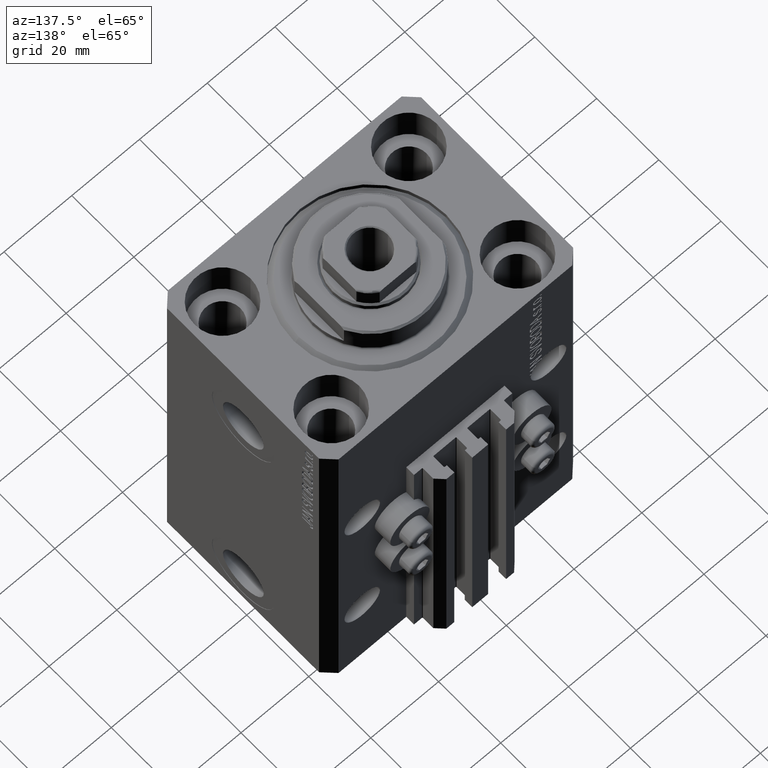
[diagram: clean part render]
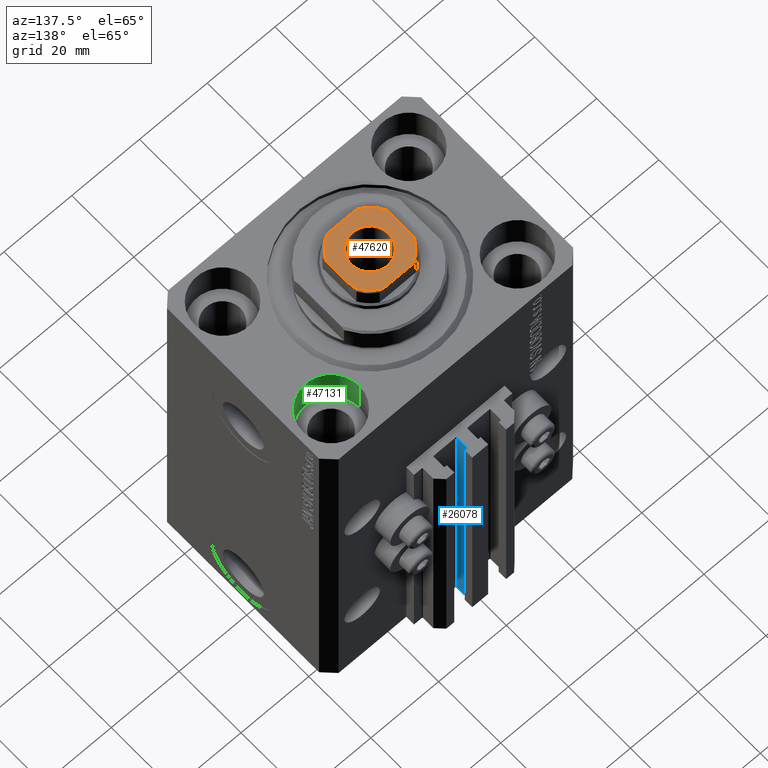
[diagram: same view with three faces highlighted in distinct colors, each labeled with its STEP entity id]
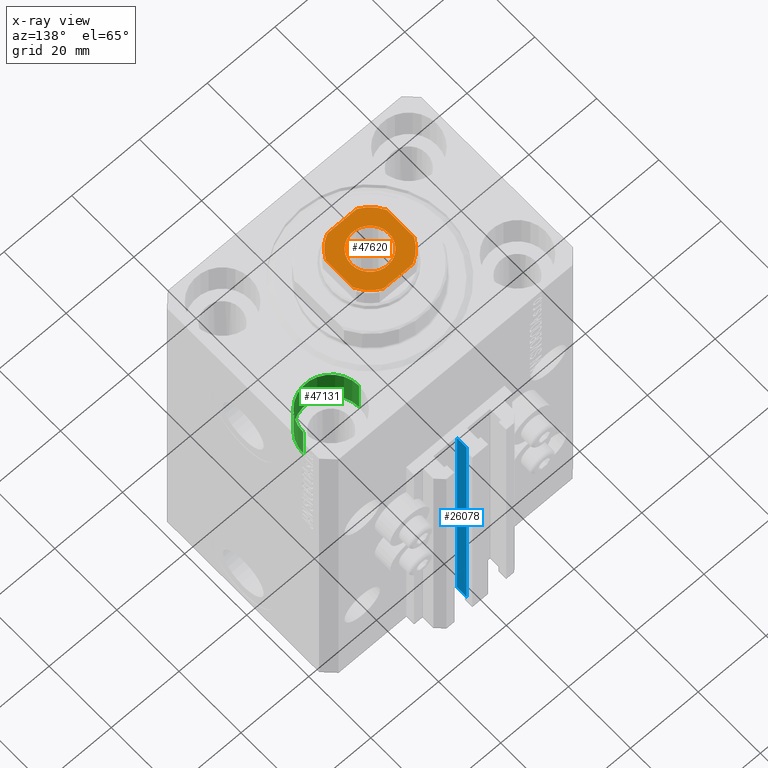
[diagram: x-ray of the same camera — body ghosted, the three highlighted faces saturated]
A machine part, auxiliary view with three faces highlighted in distinct colors.
The next image is the same camera in x-ray (body ghosted, the three faces saturated) — at least one of them is partly hidden behind the body in this view.
Their STEP definitions:

[orange] entity #47620 — the highlighted planar face has unit normal (0, 0, 1).
#175 = VERTEX_POINT ( 'NONE', #40289 ) ;
#805 = CIRCLE ( 'NONE', #36385, 10.00000000000000000 ) ;
#1974 = EDGE_CURVE ( 'NONE', #20349, #175, #35074, .T. ) ;
#2368 = DIRECTION ( 'NONE',  ( 1.000000000000000000, 0.000000000000000000, 0.000000000000000000 ) ) ;
#4389 = DIRECTION ( 'NONE',  ( 9.637352644315595243E-17, -1.000000000000000000, 0.000000000000000000 ) ) ;
#4823 = EDGE_CURVE ( 'NONE', #27548, #38498, #20474, .T. ) ;
#4970 = EDGE_CURVE ( 'NONE', #175, #9962, #40990, .T. ) ;
#5602 = ORIENTED_EDGE ( 'NONE', *, *, #16789, .T. ) ;
#5926 = VECTOR ( 'NONE', #46401, 1000.000000000000000 ) ;
#6090 = ORIENTED_EDGE ( 'NONE', *, *, #24774, .T. ) ;
#6371 = CARTESIAN_POINT ( 'NONE',  ( 4.358898943540671311, -9.000000000000001776, 115.1000000000000085 ) ) ;
#8574 = EDGE_CURVE ( 'NONE', #9962, #27548, #37460, .T. ) ;
#8783 = DIRECTION ( 'NONE',  ( -0.000000000000000000, 0.000000000000000000, 1.000000000000000000 ) ) ;
#9962 = VERTEX_POINT ( 'NONE', #22454 ) ;
#10076 = DIRECTION ( 'NONE',  ( -0.000000000000000000, 0.000000000000000000, 1.000000000000000000 ) ) ;
#10531 = AXIS2_PLACEMENT_3D ( 'NONE', #17112, #10076, #32369 ) ;
#11165 = CARTESIAN_POINT ( 'NONE',  ( 9.000000000000001776, -4.358898943540675752, 115.1000000000000085 ) ) ;
#11641 = EDGE_LOOP ( 'NONE', ( #39034, #31295 ) ) ;
#11667 = ORIENTED_EDGE ( 'NONE', *, *, #39511, .T. ) ;
#11941 = EDGE_LOOP ( 'NONE', ( #35199, #44361, #36727, #6090, #11667, #13861, #5602, #28108 ) ) ;
#12011 = DIRECTION ( 'NONE',  ( 1.000000000000000000, 0.000000000000000000, 0.000000000000000000 ) ) ;
#12061 = CIRCLE ( 'NONE', #43798, 5.549999999999985612 ) ;
#12099 = CIRCLE ( 'NONE', #36009, 5.549999999999985612 ) ;
#13861 = ORIENTED_EDGE ( 'NONE', *, *, #41456, .T. ) ;
#14510 = DIRECTION ( 'NONE',  ( -1.000000000000000000, -0.000000000000000000, -0.000000000000000000 ) ) ;
#15023 = VERTEX_POINT ( 'NONE', #41689 ) ;
#15218 = LINE ( 'NONE', #18392, #39248 ) ;
#15980 = VECTOR ( 'NONE', #4389, 1000.000000000000000 ) ;
#16060 = CARTESIAN_POINT ( 'NONE',  ( 0.000000000000000000, 0.000000000000000000, 115.1000000000000085 ) ) ;
#16461 = DIRECTION ( 'NONE',  ( 1.000000000000000000, 0.000000000000000000, 0.000000000000000000 ) ) ;
#16789 = EDGE_CURVE ( 'NONE', #22321, #20349, #32215, .T. ) ;
#17112 = CARTESIAN_POINT ( 'NONE',  ( 0.000000000000000000, 0.000000000000000000, 115.1000000000000085 ) ) ;
#17911 = CARTESIAN_POINT ( 'NONE',  ( -9.000000000000000000, 8.999999999999998224, 115.1000000000000085 ) ) ;
#18392 = CARTESIAN_POINT ( 'NONE',  ( 9.000000000000000000, 8.999999999999998224, 115.1000000000000085 ) ) ;
#18747 = VERTEX_POINT ( 'NONE', #41356 ) ;
#18813 = CARTESIAN_POINT ( 'NONE',  ( 0.000000000000000000, 0.000000000000000000, 115.1000000000000085 ) ) ;
#19942 = CARTESIAN_POINT ( 'NONE',  ( 4.358898943540677529, 8.999999999999998224, 115.1000000000000085 ) ) ;
#20349 = VERTEX_POINT ( 'NONE', #25445 ) ;
#20474 = LINE ( 'NONE', #24338, #5926 ) ;
#20578 = DIRECTION ( 'NONE',  ( -0.000000000000000000, 0.000000000000000000, 1.000000000000000000 ) ) ;
#22321 = VERTEX_POINT ( 'NONE', #19942 ) ;
#22454 = CARTESIAN_POINT ( 'NONE',  ( -9.000000000000000000, -4.358898943540675752, 115.1000000000000085 ) ) ;
#22615 = DIRECTION ( 'NONE',  ( 1.000000000000000000, 0.000000000000000000, 0.000000000000000000 ) ) ;
#23226 = VERTEX_POINT ( 'NONE', #11165 ) ;
#24145 = FACE_BOUND ( 'NONE', #11641, .T. ) ;
#24338 = CARTESIAN_POINT ( 'NONE',  ( -8.999999999999998224, -9.000000000000001776, 115.1000000000000085 ) ) ;
#24774 = EDGE_CURVE ( 'NONE', #38498, #23226, #805, .T. ) ;
#25090 = DIRECTION ( 'NONE',  ( 0.000000000000000000, -0.000000000000000000, -1.000000000000000000 ) ) ;
#25445 = CARTESIAN_POINT ( 'NONE',  ( -4.358898943540678417, 8.999999999999998224, 115.1000000000000085 ) ) ;
#26812 = EDGE_CURVE ( 'NONE', #18747, #35604, #12099, .T. ) ;
#27548 = VERTEX_POINT ( 'NONE', #33646 ) ;
#28108 = ORIENTED_EDGE ( 'NONE', *, *, #1974, .T. ) ;
#28752 = CARTESIAN_POINT ( 'NONE',  ( 0.000000000000000000, 0.000000000000000000, 115.1000000000000085 ) ) ;
#28968 = EDGE_CURVE ( 'NONE', #35604, #18747, #12061, .T. ) ;
#29608 = CARTESIAN_POINT ( 'NONE',  ( -5.549999999999985612, 6.796789735267793031E-16, 115.1000000000000085 ) ) ;
#30010 = DIRECTION ( 'NONE',  ( -9.637352644315595243E-17, 1.000000000000000000, -0.000000000000000000 ) ) ;
#30770 = CIRCLE ( 'NONE', #33877, 10.00000000000000000 ) ;
#31295 = ORIENTED_EDGE ( 'NONE', *, *, #28968, .T. ) ;
#31940 = DIRECTION ( 'NONE',  ( -0.000000000000000000, 0.000000000000000000, 1.000000000000000000 ) ) ;
#32215 = LINE ( 'NONE', #17911, #41213 ) ;
#32369 = DIRECTION ( 'NONE',  ( 1.000000000000000000, 0.000000000000000000, 0.000000000000000000 ) ) ;
#33646 = CARTESIAN_POINT ( 'NONE',  ( -4.358898943540671311, -9.000000000000001776, 115.1000000000000085 ) ) ;
#33877 = AXIS2_PLACEMENT_3D ( 'NONE', #35587, #31940, #43089 ) ;
#35074 = CIRCLE ( 'NONE', #47435, 10.00000000000000000 ) ;
#35199 = ORIENTED_EDGE ( 'NONE', *, *, #4970, .T. ) ;
#35556 = DIRECTION ( 'NONE',  ( -0.000000000000000000, 0.000000000000000000, 1.000000000000000000 ) ) ;
#35587 = CARTESIAN_POINT ( 'NONE',  ( 0.000000000000000000, 0.000000000000000000, 115.1000000000000085 ) ) ;
#35604 = VERTEX_POINT ( 'NONE', #29608 ) ;
#36009 = AXIS2_PLACEMENT_3D ( 'NONE', #18813, #45227, #12011 ) ;
#36385 = AXIS2_PLACEMENT_3D ( 'NONE', #42157, #20578, #16461 ) ;
#36719 = DIRECTION ( 'NONE',  ( 1.000000000000000000, 0.000000000000000000, 0.000000000000000000 ) ) ;
#36727 = ORIENTED_EDGE ( 'NONE', *, *, #4823, .T. ) ;
#37460 = CIRCLE ( 'NONE', #46720, 10.00000000000000000 ) ;
#37575 = CARTESIAN_POINT ( 'NONE',  ( -9.000000000000000000, 8.999999999999998224, 115.1000000000000085 ) ) ;
#38498 = VERTEX_POINT ( 'NONE', #6371 ) ;
#39034 = ORIENTED_EDGE ( 'NONE', *, *, #26812, .T. ) ;
#39248 = VECTOR ( 'NONE', #30010, 1000.000000000000000 ) ;
#39511 = EDGE_CURVE ( 'NONE', #23226, #15023, #15218, .T. ) ;
#40289 = CARTESIAN_POINT ( 'NONE',  ( -9.000000000000000000, 4.358898943540674864, 115.1000000000000085 ) ) ;
#40990 = LINE ( 'NONE', #37575, #15980 ) ;
#41213 = VECTOR ( 'NONE', #14510, 1000.000000000000000 ) ;
#41356 = CARTESIAN_POINT ( 'NONE',  ( 5.549999999999985612, 0.000000000000000000, 115.1000000000000085 ) ) ;
#41456 = EDGE_CURVE ( 'NONE', #15023, #22321, #30770, .T. ) ;
#41689 = CARTESIAN_POINT ( 'NONE',  ( 9.000000000000000000, 4.358898943540675752, 115.1000000000000085 ) ) ;
#42157 = CARTESIAN_POINT ( 'NONE',  ( 0.000000000000000000, 0.000000000000000000, 115.1000000000000085 ) ) ;
#43089 = DIRECTION ( 'NONE',  ( 1.000000000000000000, 0.000000000000000000, 0.000000000000000000 ) ) ;
#43798 = AXIS2_PLACEMENT_3D ( 'NONE', #47604, #25090, #36719 ) ;
#44361 = ORIENTED_EDGE ( 'NONE', *, *, #8574, .T. ) ;
#45227 = DIRECTION ( 'NONE',  ( 0.000000000000000000, -0.000000000000000000, -1.000000000000000000 ) ) ;
#46401 = DIRECTION ( 'NONE',  ( 1.000000000000000000, 0.000000000000000000, 0.000000000000000000 ) ) ;
#46720 = AXIS2_PLACEMENT_3D ( 'NONE', #28752, #35556, #2368 ) ;
#46903 = PLANE ( 'NONE',  #10531 ) ;
#47147 = FACE_OUTER_BOUND ( 'NONE', #11941, .T. ) ;
#47435 = AXIS2_PLACEMENT_3D ( 'NONE', #16060, #8783, #22615 ) ;
#47604 = CARTESIAN_POINT ( 'NONE',  ( 0.000000000000000000, 0.000000000000000000, 115.1000000000000085 ) ) ;
#47620 = ADVANCED_FACE ( 'NONE', ( #24145, #47147 ), #46903, .T. ) ;

[blue] entity #26078 — the highlighted planar face has unit normal (1, 0, 0).
#736 = VECTOR ( 'NONE', #16417, 1000.000000000000000 ) ;
#8980 = VERTEX_POINT ( 'NONE', #31976 ) ;
#9221 = VECTOR ( 'NONE', #47452, 1000.000000000000000 ) ;
#9330 = LINE ( 'NONE', #27275, #44061 ) ;
#9769 = DIRECTION ( 'NONE',  ( 0.000000000000000000, 0.000000000000000000, -1.000000000000000000 ) ) ;
#11707 = CARTESIAN_POINT ( 'NONE',  ( 1.599999999999999645, 29.69999999999999929, -110.0000000000000000 ) ) ;
#13016 = CARTESIAN_POINT ( 'NONE',  ( 1.600000000000000533, 29.69999999999999929, -110.0000000000000000 ) ) ;
#13414 = PLANE ( 'NONE',  #24453 ) ;
#13500 = EDGE_CURVE ( 'NONE', #22248, #24293, #17663, .T. ) ;
#13658 = EDGE_CURVE ( 'NONE', #22248, #8980, #38719, .T. ) ;
#13962 = VERTEX_POINT ( 'NONE', #21952 ) ;
#15302 = ORIENTED_EDGE ( 'NONE', *, *, #22741, .F. ) ;
#16119 = DIRECTION ( 'NONE',  ( 0.000000000000000000, 1.000000000000000000, 0.000000000000000000 ) ) ;
#16417 = DIRECTION ( 'NONE',  ( 0.000000000000000000, 1.000000000000000000, 0.000000000000000000 ) ) ;
#16995 = CARTESIAN_POINT ( 'NONE',  ( 1.600000000000000533, 32.90000000000001279, -110.0000000000000000 ) ) ;
#17663 = LINE ( 'NONE', #36082, #9221 ) ;
#19742 = CARTESIAN_POINT ( 'NONE',  ( 1.599999999999999645, 29.69999999999999929, -33.00000000000000000 ) ) ;
#21125 = ORIENTED_EDGE ( 'NONE', *, *, #42977, .T. ) ;
#21952 = CARTESIAN_POINT ( 'NONE',  ( 1.600000000000000533, 32.90000000000001279, -33.00000000000000000 ) ) ;
#22248 = VERTEX_POINT ( 'NONE', #11707 ) ;
#22741 = EDGE_CURVE ( 'NONE', #24293, #13962, #9330, .T. ) ;
#23548 = LINE ( 'NONE', #16995, #37028 ) ;
#24293 = VERTEX_POINT ( 'NONE', #19742 ) ;
#24453 = AXIS2_PLACEMENT_3D ( 'NONE', #28201, #42984, #9769 ) ;
#26078 = ADVANCED_FACE ( 'NONE', ( #27972 ), #13414, .T. ) ;
#27275 = CARTESIAN_POINT ( 'NONE',  ( 1.600000000000000533, 29.69999999999999929, -33.00000000000000000 ) ) ;
#27428 = DIRECTION ( 'NONE',  ( 0.000000000000000000, 0.000000000000000000, 1.000000000000000000 ) ) ;
#27972 = FACE_OUTER_BOUND ( 'NONE', #38314, .T. ) ;
#28201 = CARTESIAN_POINT ( 'NONE',  ( 1.600000000000000533, 29.69999999999999929, -110.0000000000000000 ) ) ;
#31976 = CARTESIAN_POINT ( 'NONE',  ( 1.600000000000000533, 32.90000000000001279, -110.0000000000000000 ) ) ;
#33533 = ORIENTED_EDGE ( 'NONE', *, *, #13500, .F. ) ;
#36082 = CARTESIAN_POINT ( 'NONE',  ( 1.599999999999999645, 29.69999999999999929, -110.0000000000000000 ) ) ;
#37028 = VECTOR ( 'NONE', #27428, 1000.000000000000000 ) ;
#38314 = EDGE_LOOP ( 'NONE', ( #15302, #33533, #44171, #21125 ) ) ;
#38719 = LINE ( 'NONE', #13016, #736 ) ;
#42977 = EDGE_CURVE ( 'NONE', #8980, #13962, #23548, .T. ) ;
#42984 = DIRECTION ( 'NONE',  ( 1.000000000000000000, 0.000000000000000000, 0.000000000000000000 ) ) ;
#44061 = VECTOR ( 'NONE', #16119, 1000.000000000000000 ) ;
#44171 = ORIENTED_EDGE ( 'NONE', *, *, #13658, .T. ) ;
#47452 = DIRECTION ( 'NONE',  ( 0.000000000000000000, 0.000000000000000000, 1.000000000000000000 ) ) ;

[green] entity #47131 — the highlighted cylindrical surface (partial cylindrical patch) has radius 8.25 mm, axis along (0, 0, 1).
#1543 = CARTESIAN_POINT ( 'NONE',  ( 27.49999999999999645, 17.50000000000001066, 0.000000000000000000 ) ) ;
#3406 = DIRECTION ( 'NONE',  ( 0.000000000000000000, 0.000000000000000000, 1.000000000000000000 ) ) ;
#3555 = DIRECTION ( 'NONE',  ( 1.000000000000000000, 0.000000000000000000, 0.000000000000000000 ) ) ;
#3651 = CYLINDRICAL_SURFACE ( 'NONE', #29877, 8.249999999999992895 ) ;
#6693 = ORIENTED_EDGE ( 'NONE', *, *, #28378, .T. ) ;
#7714 = ORIENTED_EDGE ( 'NONE', *, *, #20340, .F. ) ;
#7728 = ORIENTED_EDGE ( 'NONE', *, *, #13951, .T. ) ;
#7748 = DIRECTION ( 'NONE',  ( 1.000000000000000000, 0.000000000000000000, 0.000000000000000000 ) ) ;
#9832 = CARTESIAN_POINT ( 'NONE',  ( 35.74999999999999289, 17.50000000000001066, -11.00000000000000000 ) ) ;
#10082 = VECTOR ( 'NONE', #27923, 1000.000000000000000 ) ;
#10824 = CARTESIAN_POINT ( 'NONE',  ( 35.74999999999999289, 17.50000000000001066, 0.000000000000000000 ) ) ;
#11910 = EDGE_CURVE ( 'NONE', #32148, #38003, #27434, .T. ) ;
#13860 = CIRCLE ( 'NONE', #43271, 8.249999999999992895 ) ;
#13951 = EDGE_CURVE ( 'NONE', #24200, #38003, #13860, .T. ) ;
#14784 = CARTESIAN_POINT ( 'NONE',  ( 27.49999999999999645, 17.50000000000001066, -11.00000000000000000 ) ) ;
#15123 = CARTESIAN_POINT ( 'NONE',  ( 19.25000000000000000, 17.50000000000001066, -11.00000000000000000 ) ) ;
#15250 = FACE_OUTER_BOUND ( 'NONE', #39726, .T. ) ;
#19736 = AXIS2_PLACEMENT_3D ( 'NONE', #21807, #3406, #43874 ) ;
#20292 = ORIENTED_EDGE ( 'NONE', *, *, #11910, .F. ) ;
#20340 = EDGE_CURVE ( 'NONE', #28993, #32148, #45297, .T. ) ;
#21807 = CARTESIAN_POINT ( 'NONE',  ( 27.49999999999999645, 17.50000000000001066, -11.00000000000000000 ) ) ;
#22169 = CARTESIAN_POINT ( 'NONE',  ( 19.25000000000000000, 17.50000000000001066, 0.000000000000000000 ) ) ;
#23572 = DIRECTION ( 'NONE',  ( 0.000000000000000000, 0.000000000000000000, 1.000000000000000000 ) ) ;
#24200 = VERTEX_POINT ( 'NONE', #22169 ) ;
#25740 = CARTESIAN_POINT ( 'NONE',  ( 19.25000000000000000, 17.50000000000001066, -11.00000000000000000 ) ) ;
#26222 = DIRECTION ( 'NONE',  ( -0.000000000000000000, -0.000000000000000000, 1.000000000000000000 ) ) ;
#27434 = LINE ( 'NONE', #38579, #10082 ) ;
#27923 = DIRECTION ( 'NONE',  ( -0.000000000000000000, -0.000000000000000000, 1.000000000000000000 ) ) ;
#28297 = VECTOR ( 'NONE', #26222, 1000.000000000000000 ) ;
#28378 = EDGE_CURVE ( 'NONE', #28993, #24200, #41015, .T. ) ;
#28993 = VERTEX_POINT ( 'NONE', #15123 ) ;
#29566 = DIRECTION ( 'NONE',  ( -0.000000000000000000, -0.000000000000000000, 1.000000000000000000 ) ) ;
#29877 = AXIS2_PLACEMENT_3D ( 'NONE', #14784, #29566, #7748 ) ;
#32148 = VERTEX_POINT ( 'NONE', #9832 ) ;
#38003 = VERTEX_POINT ( 'NONE', #10824 ) ;
#38579 = CARTESIAN_POINT ( 'NONE',  ( 35.74999999999999289, 17.50000000000001066, -11.00000000000000000 ) ) ;
#39726 = EDGE_LOOP ( 'NONE', ( #7714, #6693, #7728, #20292 ) ) ;
#41015 = LINE ( 'NONE', #25740, #28297 ) ;
#43271 = AXIS2_PLACEMENT_3D ( 'NONE', #1543, #23572, #3555 ) ;
#43874 = DIRECTION ( 'NONE',  ( 1.000000000000000000, 0.000000000000000000, 0.000000000000000000 ) ) ;
#45297 = CIRCLE ( 'NONE', #19736, 8.249999999999992895 ) ;
#47131 = ADVANCED_FACE ( 'NONE', ( #15250 ), #3651, .F. ) ;